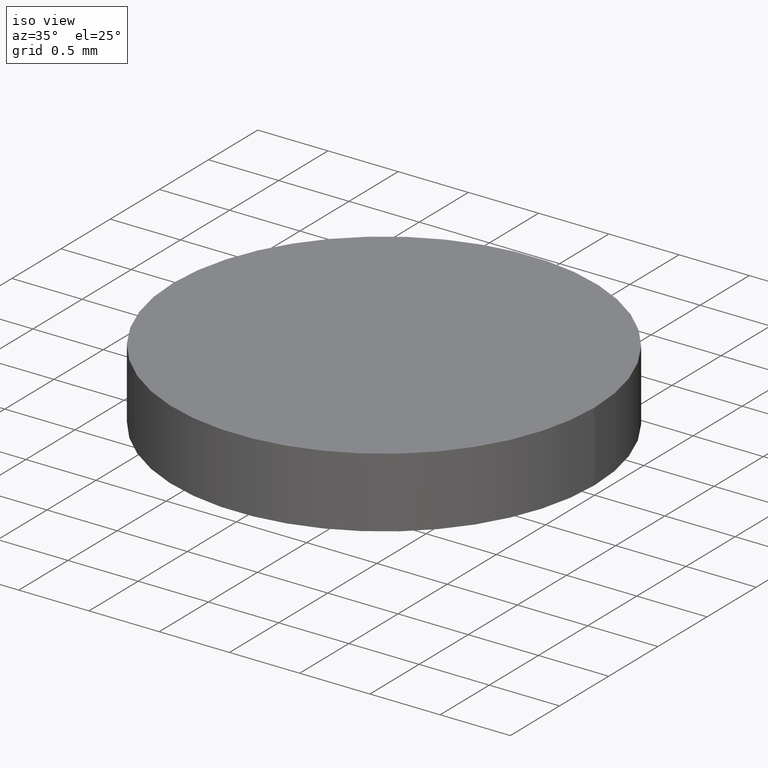
[diagram: clean part render]
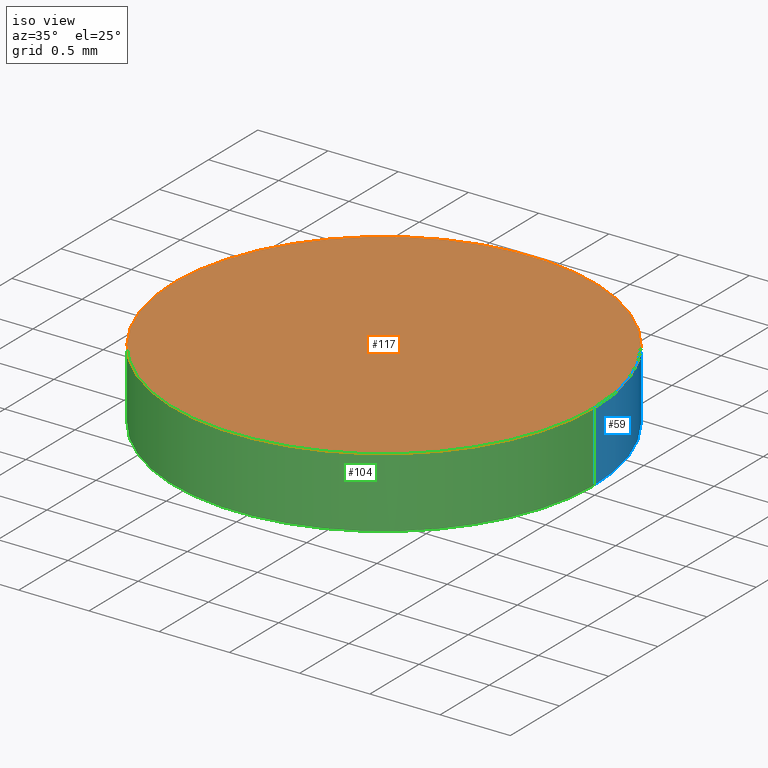
[diagram: same view with three faces highlighted in distinct colors, each labeled with its STEP entity id]
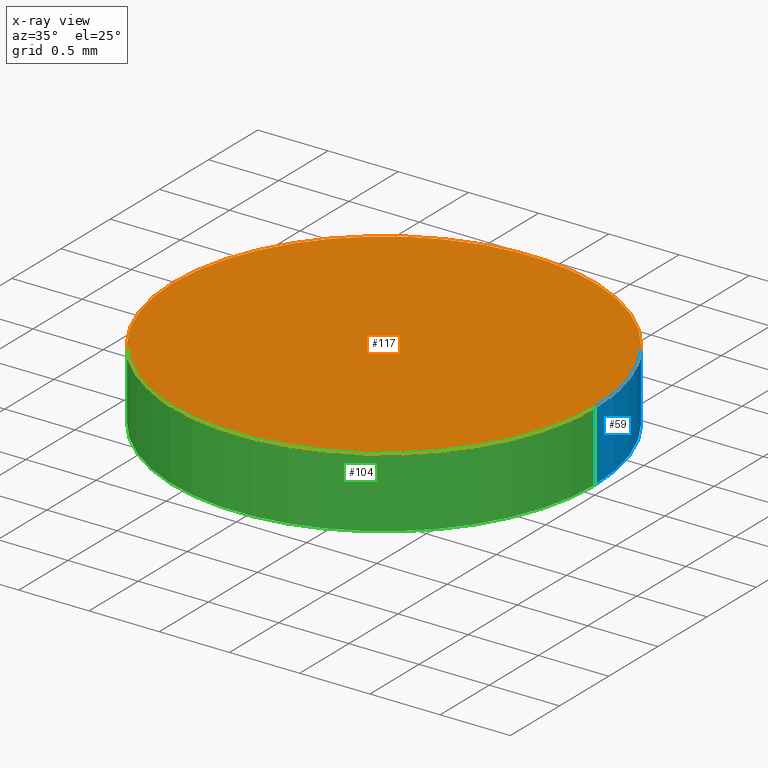
[diagram: x-ray of the same camera — body ghosted, the three highlighted faces saturated]
A machine part, iso view with three faces highlighted in distinct colors.
The next image is the same camera in x-ray (body ghosted, the three faces saturated) — at least one of them is partly hidden behind the body in this view.
Their STEP definitions:

[orange] entity #117 — the highlighted planar face has unit normal (0, 0, 1).
#6 = DIRECTION ( 'NONE',  ( 0.0000000000000000000, 0.0000000000000000000, 1.000000000000000000 ) ) ;
#11 = AXIS2_PLACEMENT_3D ( 'NONE', #52, #116, #40 ) ;
#16 = DIRECTION ( 'NONE',  ( 1.000000000000000000, 0.0000000000000000000, 0.0000000000000000000 ) ) ;
#27 = CARTESIAN_POINT ( 'NONE',  ( 0.0000000000000000000, 0.0000000000000000000, 0.5000000000000000000 ) ) ;
#28 = PLANE ( 'NONE',  #109 ) ;
#30 = EDGE_CURVE ( 'NONE', #39, #120, #98, .T. ) ;
#39 = VERTEX_POINT ( 'NONE', #75 ) ;
#40 = DIRECTION ( 'NONE',  ( 1.000000000000000000, 0.0000000000000000000, 0.0000000000000000000 ) ) ;
#52 = CARTESIAN_POINT ( 'NONE',  ( 0.0000000000000000000, 0.0000000000000000000, 0.5000000000000000000 ) ) ;
#66 = ORIENTED_EDGE ( 'NONE', *, *, #30, .T. ) ;
#72 = DIRECTION ( 'NONE',  ( 1.000000000000000000, 0.0000000000000000000, -0.0000000000000000000 ) ) ;
#73 = CARTESIAN_POINT ( 'NONE',  ( 0.0000000000000000000, 0.0000000000000000000, 0.5000000000000000000 ) ) ;
#75 = CARTESIAN_POINT ( 'NONE',  ( 1.500000000000000200, 1.836970198721030200E-016, 0.5000000000000000000 ) ) ;
#80 = CIRCLE ( 'NONE', #85, 1.500000000000000200 ) ;
#85 = AXIS2_PLACEMENT_3D ( 'NONE', #27, #90, #16 ) ;
#90 = DIRECTION ( 'NONE',  ( 0.0000000000000000000, 0.0000000000000000000, 1.000000000000000000 ) ) ;
#96 = ORIENTED_EDGE ( 'NONE', *, *, #122, .T. ) ;
#98 = CIRCLE ( 'NONE', #11, 1.500000000000000200 ) ;
#109 = AXIS2_PLACEMENT_3D ( 'NONE', #73, #6, #72 ) ;
#114 = CARTESIAN_POINT ( 'NONE',  ( -1.500000000000000200, 0.0000000000000000000, 0.5000000000000000000 ) ) ;
#116 = DIRECTION ( 'NONE',  ( 0.0000000000000000000, 0.0000000000000000000, 1.000000000000000000 ) ) ;
#117 = ADVANCED_FACE ( 'NONE', ( #133 ), #28, .T. ) ;
#120 = VERTEX_POINT ( 'NONE', #114 ) ;
#121 = EDGE_LOOP ( 'NONE', ( #96, #66 ) ) ;
#122 = EDGE_CURVE ( 'NONE', #120, #39, #80, .T. ) ;
#133 = FACE_OUTER_BOUND ( 'NONE', #121, .T. ) ;

[blue] entity #59 — the highlighted cylindrical surface (partial cylindrical patch) has radius 1.5 mm, axis along (-0, -0, -1).
#1 = AXIS2_PLACEMENT_3D ( 'NONE', #107, #61, #57 ) ;
#2 = VERTEX_POINT ( 'NONE', #9 ) ;
#9 = CARTESIAN_POINT ( 'NONE',  ( 1.500000000000000200, 1.836970198721030200E-016, 0.0000000000000000000 ) ) ;
#11 = AXIS2_PLACEMENT_3D ( 'NONE', #52, #116, #40 ) ;
#12 = LINE ( 'NONE', #128, #124 ) ;
#17 = ORIENTED_EDGE ( 'NONE', *, *, #92, .T. ) ;
#18 = DIRECTION ( 'NONE',  ( -0.0000000000000000000, -0.0000000000000000000, -1.000000000000000000 ) ) ;
#19 = EDGE_CURVE ( 'NONE', #120, #63, #12, .T. ) ;
#23 = ORIENTED_EDGE ( 'NONE', *, *, #115, .T. ) ;
#30 = EDGE_CURVE ( 'NONE', #39, #120, #98, .T. ) ;
#35 = EDGE_LOOP ( 'NONE', ( #88, #23, #17, #65 ) ) ;
#39 = VERTEX_POINT ( 'NONE', #75 ) ;
#40 = DIRECTION ( 'NONE',  ( 1.000000000000000000, 0.0000000000000000000, 0.0000000000000000000 ) ) ;
#51 = DIRECTION ( 'NONE',  ( 1.000000000000000000, 0.0000000000000000000, 0.0000000000000000000 ) ) ;
#52 = CARTESIAN_POINT ( 'NONE',  ( 0.0000000000000000000, 0.0000000000000000000, 0.5000000000000000000 ) ) ;
#56 = CARTESIAN_POINT ( 'NONE',  ( 0.0000000000000000000, 0.0000000000000000000, 0.0000000000000000000 ) ) ;
#57 = DIRECTION ( 'NONE',  ( -1.000000000000000000, 0.0000000000000000000, 0.0000000000000000000 ) ) ;
#59 = ADVANCED_FACE ( 'NONE', ( #70 ), #77, .T. ) ;
#61 = DIRECTION ( 'NONE',  ( -0.0000000000000000000, -0.0000000000000000000, -1.000000000000000000 ) ) ;
#63 = VERTEX_POINT ( 'NONE', #94 ) ;
#65 = ORIENTED_EDGE ( 'NONE', *, *, #19, .F. ) ;
#70 = FACE_OUTER_BOUND ( 'NONE', #35, .T. ) ;
#75 = CARTESIAN_POINT ( 'NONE',  ( 1.500000000000000200, 1.836970198721030200E-016, 0.5000000000000000000 ) ) ;
#77 = CYLINDRICAL_SURFACE ( 'NONE', #1, 1.500000000000000200 ) ;
#87 = AXIS2_PLACEMENT_3D ( 'NONE', #56, #126, #51 ) ;
#88 = ORIENTED_EDGE ( 'NONE', *, *, #30, .F. ) ;
#91 = CARTESIAN_POINT ( 'NONE',  ( 1.500000000000000200, 1.836970198721030200E-016, 0.5000000000000000000 ) ) ;
#92 = EDGE_CURVE ( 'NONE', #2, #63, #130, .T. ) ;
#94 = CARTESIAN_POINT ( 'NONE',  ( -1.500000000000000200, 0.0000000000000000000, 0.0000000000000000000 ) ) ;
#95 = DIRECTION ( 'NONE',  ( -0.0000000000000000000, -0.0000000000000000000, -1.000000000000000000 ) ) ;
#97 = LINE ( 'NONE', #91, #131 ) ;
#98 = CIRCLE ( 'NONE', #11, 1.500000000000000200 ) ;
#107 = CARTESIAN_POINT ( 'NONE',  ( 0.0000000000000000000, 0.0000000000000000000, 0.5000000000000000000 ) ) ;
#114 = CARTESIAN_POINT ( 'NONE',  ( -1.500000000000000200, 0.0000000000000000000, 0.5000000000000000000 ) ) ;
#115 = EDGE_CURVE ( 'NONE', #39, #2, #97, .T. ) ;
#116 = DIRECTION ( 'NONE',  ( 0.0000000000000000000, 0.0000000000000000000, 1.000000000000000000 ) ) ;
#120 = VERTEX_POINT ( 'NONE', #114 ) ;
#124 = VECTOR ( 'NONE', #95, 1000.000000000000000 ) ;
#126 = DIRECTION ( 'NONE',  ( 0.0000000000000000000, 0.0000000000000000000, 1.000000000000000000 ) ) ;
#128 = CARTESIAN_POINT ( 'NONE',  ( -1.500000000000000200, 0.0000000000000000000, 0.5000000000000000000 ) ) ;
#130 = CIRCLE ( 'NONE', #87, 1.500000000000000200 ) ;
#131 = VECTOR ( 'NONE', #18, 1000.000000000000000 ) ;

[green] entity #104 — the highlighted cylindrical surface (partial cylindrical patch) has radius 1.5 mm, axis along (-0, -0, -1).
#2 = VERTEX_POINT ( 'NONE', #9 ) ;
#5 = AXIS2_PLACEMENT_3D ( 'NONE', #71, #135, #55 ) ;
#8 = DIRECTION ( 'NONE',  ( -1.000000000000000000, 0.0000000000000000000, 0.0000000000000000000 ) ) ;
#9 = CARTESIAN_POINT ( 'NONE',  ( 1.500000000000000200, 1.836970198721030200E-016, 0.0000000000000000000 ) ) ;
#12 = LINE ( 'NONE', #128, #124 ) ;
#13 = FACE_OUTER_BOUND ( 'NONE', #45, .T. ) ;
#16 = DIRECTION ( 'NONE',  ( 1.000000000000000000, 0.0000000000000000000, 0.0000000000000000000 ) ) ;
#18 = DIRECTION ( 'NONE',  ( -0.0000000000000000000, -0.0000000000000000000, -1.000000000000000000 ) ) ;
#19 = EDGE_CURVE ( 'NONE', #120, #63, #12, .T. ) ;
#27 = CARTESIAN_POINT ( 'NONE',  ( 0.0000000000000000000, 0.0000000000000000000, 0.5000000000000000000 ) ) ;
#29 = CARTESIAN_POINT ( 'NONE',  ( 0.0000000000000000000, 0.0000000000000000000, 0.5000000000000000000 ) ) ;
#31 = ORIENTED_EDGE ( 'NONE', *, *, #122, .F. ) ;
#39 = VERTEX_POINT ( 'NONE', #75 ) ;
#45 = EDGE_LOOP ( 'NONE', ( #93, #31, #78, #81 ) ) ;
#48 = CYLINDRICAL_SURFACE ( 'NONE', #119, 1.500000000000000200 ) ;
#55 = DIRECTION ( 'NONE',  ( 1.000000000000000000, 0.0000000000000000000, 0.0000000000000000000 ) ) ;
#63 = VERTEX_POINT ( 'NONE', #94 ) ;
#71 = CARTESIAN_POINT ( 'NONE',  ( 0.0000000000000000000, 0.0000000000000000000, 0.0000000000000000000 ) ) ;
#75 = CARTESIAN_POINT ( 'NONE',  ( 1.500000000000000200, 1.836970198721030200E-016, 0.5000000000000000000 ) ) ;
#78 = ORIENTED_EDGE ( 'NONE', *, *, #19, .T. ) ;
#80 = CIRCLE ( 'NONE', #85, 1.500000000000000200 ) ;
#81 = ORIENTED_EDGE ( 'NONE', *, *, #132, .T. ) ;
#85 = AXIS2_PLACEMENT_3D ( 'NONE', #27, #90, #16 ) ;
#90 = DIRECTION ( 'NONE',  ( 0.0000000000000000000, 0.0000000000000000000, 1.000000000000000000 ) ) ;
#91 = CARTESIAN_POINT ( 'NONE',  ( 1.500000000000000200, 1.836970198721030200E-016, 0.5000000000000000000 ) ) ;
#93 = ORIENTED_EDGE ( 'NONE', *, *, #115, .F. ) ;
#94 = CARTESIAN_POINT ( 'NONE',  ( -1.500000000000000200, 0.0000000000000000000, 0.0000000000000000000 ) ) ;
#95 = DIRECTION ( 'NONE',  ( -0.0000000000000000000, -0.0000000000000000000, -1.000000000000000000 ) ) ;
#97 = LINE ( 'NONE', #91, #131 ) ;
#101 = CIRCLE ( 'NONE', #5, 1.500000000000000200 ) ;
#104 = ADVANCED_FACE ( 'NONE', ( #13 ), #48, .T. ) ;
#114 = CARTESIAN_POINT ( 'NONE',  ( -1.500000000000000200, 0.0000000000000000000, 0.5000000000000000000 ) ) ;
#115 = EDGE_CURVE ( 'NONE', #39, #2, #97, .T. ) ;
#119 = AXIS2_PLACEMENT_3D ( 'NONE', #29, #136, #8 ) ;
#120 = VERTEX_POINT ( 'NONE', #114 ) ;
#122 = EDGE_CURVE ( 'NONE', #120, #39, #80, .T. ) ;
#124 = VECTOR ( 'NONE', #95, 1000.000000000000000 ) ;
#128 = CARTESIAN_POINT ( 'NONE',  ( -1.500000000000000200, 0.0000000000000000000, 0.5000000000000000000 ) ) ;
#131 = VECTOR ( 'NONE', #18, 1000.000000000000000 ) ;
#132 = EDGE_CURVE ( 'NONE', #63, #2, #101, .T. ) ;
#135 = DIRECTION ( 'NONE',  ( 0.0000000000000000000, 0.0000000000000000000, 1.000000000000000000 ) ) ;
#136 = DIRECTION ( 'NONE',  ( -0.0000000000000000000, -0.0000000000000000000, -1.000000000000000000 ) ) ;